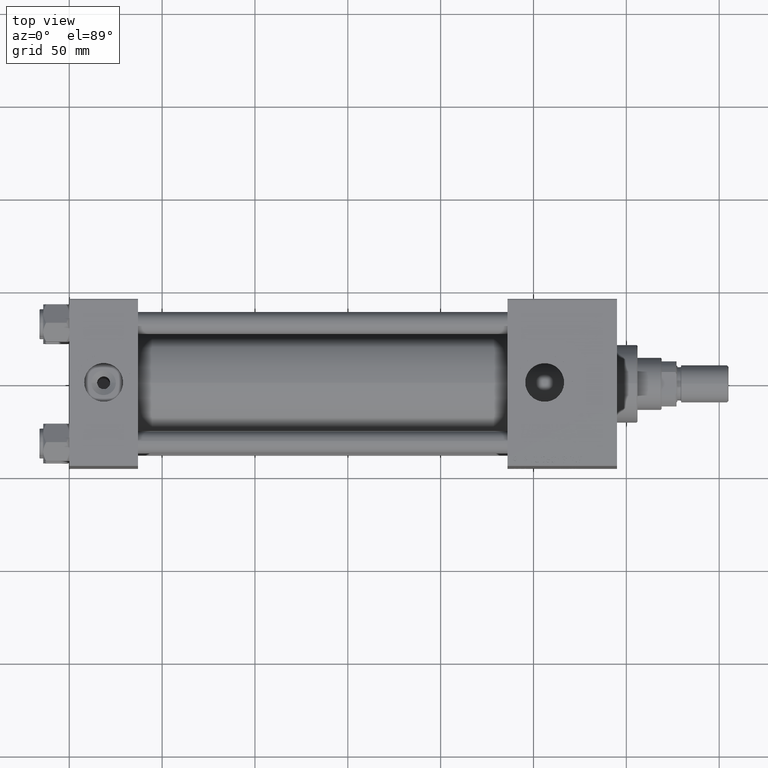
[diagram: clean part render]
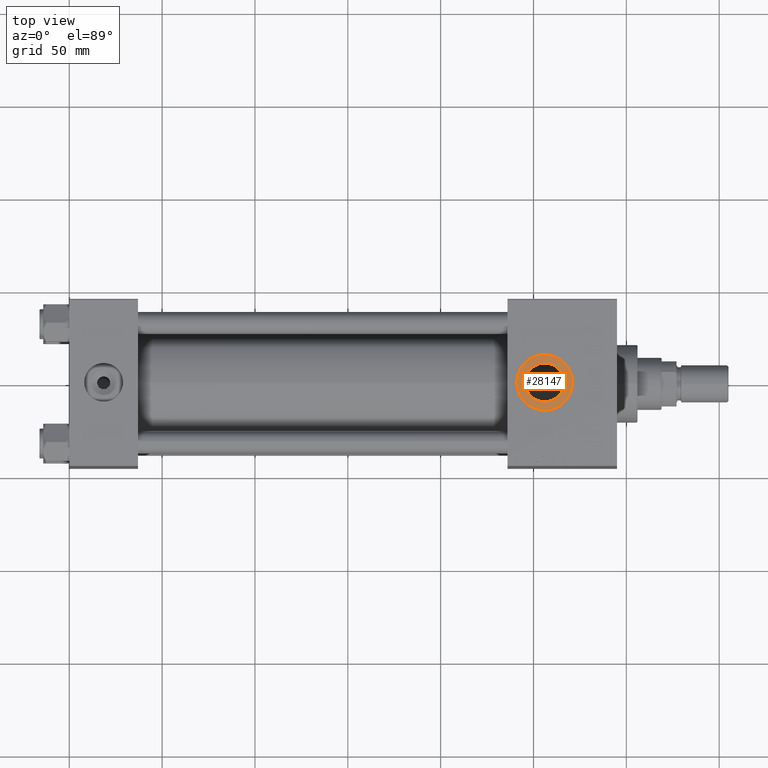
[diagram: same view with one face highlighted and labeled with its STEP entity id]
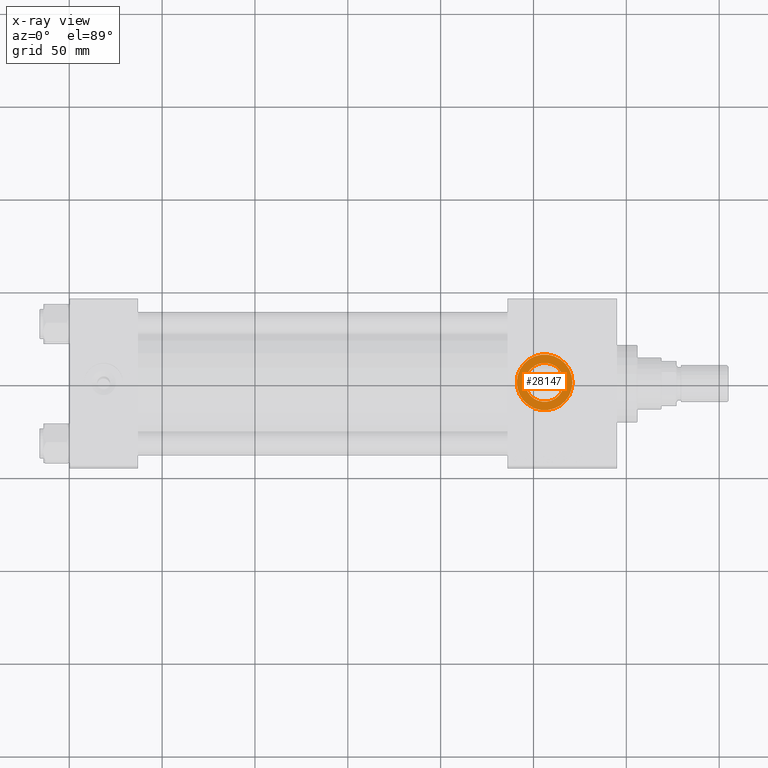
[diagram: x-ray of the same camera — body ghosted, the highlighted face saturated]
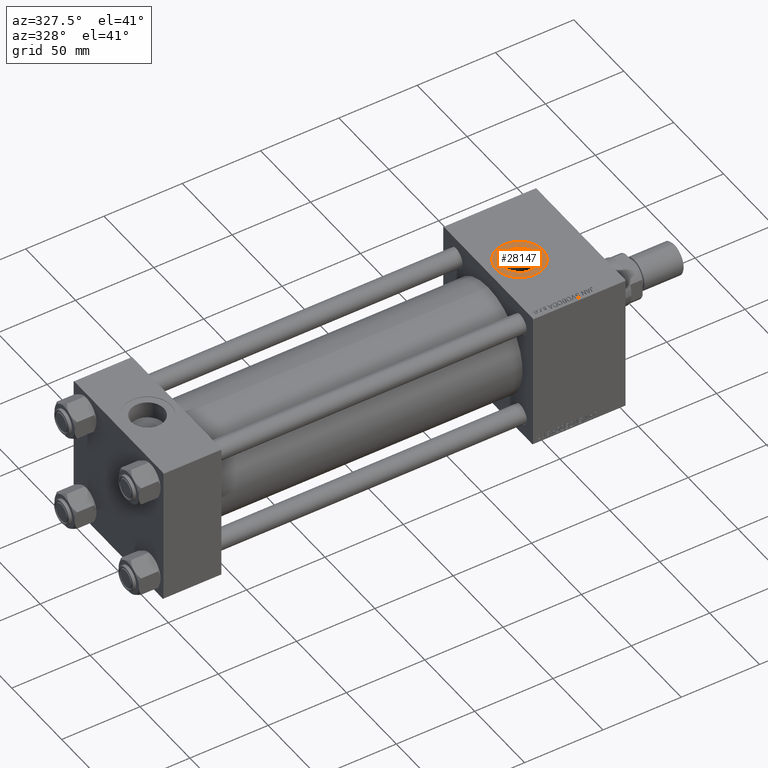
[diagram: same view with one face highlighted and labeled with its STEP entity id]
A machine part, top view. The second image highlights one B-rep face of the part: STEP entity #28147.
The next image is the same camera in x-ray: the body ghosted, the highlighted face saturated — about 0% of this face is hidden behind the body in this view.
A second angle (auxiliary view) of the same face is appended — the face is thin or edge-on in the first view.
In plain terms, the highlighted planar face has unit normal (0, 0, 1).
Its self-contained STEP definition (entity closure, byte-faithful):
#313 = EDGE_LOOP ( 'NONE', ( #45960, #31358 ) ) ;
#322 = EDGE_CURVE ( 'NONE', #50630, #48954, #9475, .T. ) ;
#2795 = CIRCLE ( 'NONE', #32676, 15.00000000000001421 ) ;
#3346 = CARTESIAN_POINT ( 'NONE',  ( 241.0000000000000000, -5.101923705186193267E-15, 44.79999999999999005 ) ) ;
#4362 = ORIENTED_EDGE ( 'NONE', *, *, #7391, .T. ) ;
#5318 = EDGE_LOOP ( 'NONE', ( #4362, #9337 ) ) ;
#5615 = CARTESIAN_POINT ( 'NONE',  ( 271.0000000000000000, -6.938893903907227589E-15, 44.79999999999999005 ) ) ;
#7391 = EDGE_CURVE ( 'NONE', #49492, #8571, #2795, .T. ) ;
#8009 = CIRCLE ( 'NONE', #33649, 15.00000000000001421 ) ;
#8571 = VERTEX_POINT ( 'NONE', #3346 ) ;
#9337 = ORIENTED_EDGE ( 'NONE', *, *, #41163, .T. ) ;
#9475 = CIRCLE ( 'NONE', #43679, 10.47999999999998977 ) ;
#9482 = DIRECTION ( 'NONE',  ( 1.000000000000000000, 0.000000000000000000, 0.000000000000000000 ) ) ;
#11563 = DIRECTION ( 'NONE',  ( 0.000000000000000000, 0.000000000000000000, 1.000000000000000000 ) ) ;
#14644 = CARTESIAN_POINT ( 'NONE',  ( 266.4800000000000182, -5.655464058400803678E-15, 44.79999999999999005 ) ) ;
#20879 = FACE_BOUND ( 'NONE', #313, .T. ) ;
#20978 = DIRECTION ( 'NONE',  ( -0.000000000000000000, -0.000000000000000000, -1.000000000000000000 ) ) ;
#21681 = CARTESIAN_POINT ( 'NONE',  ( 256.0000000000000000, -6.938893903907227589E-15, 44.79999999999999005 ) ) ;
#23565 = AXIS2_PLACEMENT_3D ( 'NONE', #24995, #20978, #9482 ) ;
#24995 = CARTESIAN_POINT ( 'NONE',  ( 256.0000000000000000, -6.938893903907227589E-15, 44.79999999999999005 ) ) ;
#28147 = ADVANCED_FACE ( 'NONE', ( #20879, #37235 ), #31884, .T. ) ;
#29493 = CARTESIAN_POINT ( 'NONE',  ( 245.5200000000000102, -6.938893903907227589E-15, 44.79999999999999005 ) ) ;
#31358 = ORIENTED_EDGE ( 'NONE', *, *, #322, .T. ) ;
#31425 = CARTESIAN_POINT ( 'NONE',  ( 256.0000000000000000, -6.938893903907227589E-15, 44.79999999999999005 ) ) ;
#31884 = PLANE ( 'NONE',  #35698 ) ;
#32406 = CARTESIAN_POINT ( 'NONE',  ( 256.0000000000000000, -6.938893903907227589E-15, 44.79999999999999005 ) ) ;
#32676 = AXIS2_PLACEMENT_3D ( 'NONE', #31425, #47771, #43751 ) ;
#33649 = AXIS2_PLACEMENT_3D ( 'NONE', #47825, #35237, #52356 ) ;
#35237 = DIRECTION ( 'NONE',  ( 0.000000000000000000, 0.000000000000000000, 1.000000000000000000 ) ) ;
#35698 = AXIS2_PLACEMENT_3D ( 'NONE', #32406, #11563, #48750 ) ;
#37235 = FACE_OUTER_BOUND ( 'NONE', #5318, .T. ) ;
#38293 = DIRECTION ( 'NONE',  ( 1.000000000000000000, 0.000000000000000000, 0.000000000000000000 ) ) ;
#41163 = EDGE_CURVE ( 'NONE', #8571, #49492, #8009, .T. ) ;
#43679 = AXIS2_PLACEMENT_3D ( 'NONE', #21681, #50602, #38293 ) ;
#43751 = DIRECTION ( 'NONE',  ( 1.000000000000000000, 0.000000000000000000, 0.000000000000000000 ) ) ;
#45535 = EDGE_CURVE ( 'NONE', #48954, #50630, #46669, .T. ) ;
#45960 = ORIENTED_EDGE ( 'NONE', *, *, #45535, .T. ) ;
#46669 = CIRCLE ( 'NONE', #23565, 10.47999999999998977 ) ;
#47771 = DIRECTION ( 'NONE',  ( 0.000000000000000000, 0.000000000000000000, 1.000000000000000000 ) ) ;
#47825 = CARTESIAN_POINT ( 'NONE',  ( 256.0000000000000000, -6.938893903907227589E-15, 44.79999999999999005 ) ) ;
#48750 = DIRECTION ( 'NONE',  ( 1.000000000000000000, 0.000000000000000000, -0.000000000000000000 ) ) ;
#48954 = VERTEX_POINT ( 'NONE', #29493 ) ;
#49492 = VERTEX_POINT ( 'NONE', #5615 ) ;
#50602 = DIRECTION ( 'NONE',  ( -0.000000000000000000, -0.000000000000000000, -1.000000000000000000 ) ) ;
#50630 = VERTEX_POINT ( 'NONE', #14644 ) ;
#52356 = DIRECTION ( 'NONE',  ( 1.000000000000000000, 0.000000000000000000, 0.000000000000000000 ) ) ;